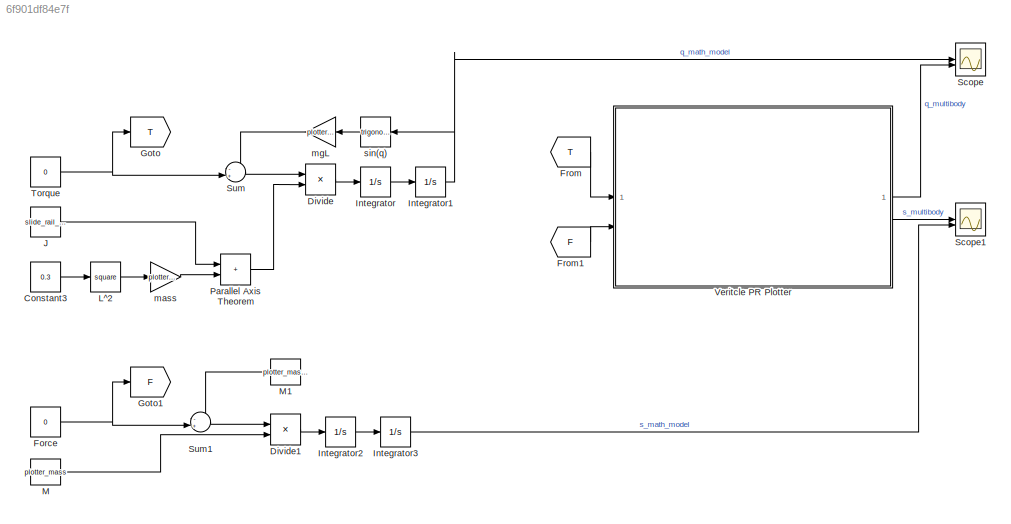
MODEL slx_6f901df84e7f
KIND model
CONFIG AbsTol = auto
CONFIG EnableMultiTasking = off
CONFIG FixedStep = 0.001
CONFIG MaxStep = auto
CONFIG MinStep = auto
CONFIG RelTol = 1e-3
CONFIG SampleTimeConstraint = Unconstrained
CONFIG SolverName = FixedStepAuto
CONFIG StartTime = 0.0
CONFIG StopTime = 10
BLOCK [Constant] Constant3
  Value = 0.3
BLOCK [Product] Divide
  Inputs = */
BLOCK [Product] Divide1
  Inputs = */
BLOCK [Constant] Force
  Value = 0
BLOCK [From] From
  GotoTag = T
BLOCK [From] From1
  GotoTag = F
BLOCK [Goto] Goto
  GotoTag = T
BLOCK [Goto] Goto1
  GotoTag = F
BLOCK [Integrator] Integrator
BLOCK [Integrator] Integrator1
BLOCK [Integrator] Integrator2
BLOCK [Integrator] Integrator3
  LowerSaturationLimit = 0
  UpperSaturationLimit = 0.3
BLOCK [Constant] J
  Value = slide_rail_Izz+cover_flage_Izz+plotter_Izz
BLOCK [Math] L^2
  Operator = square
BLOCK [Constant] M
  Value = plotter_mass
BLOCK [Constant] M1
  NameLocation = top
  Value = plotter_mass*g
BLOCK [Sum] Parallel Axis Theorem
  IconShape = rectangular
BLOCK [Scope] Scope
  Floating = off
  NumInputPorts = 2
  ScopeSpecificationString = Simulink.scopes.TimeScopeBlockCfg('CurrentConfiguration', extmgr.ConfigurationSet(extmgr.Configuration('Core','General UI',true),extmgr.Configuration('Core','Source UI',true),extmgr.Configuration('Sources','WiredSimulink',true),extmgr.Configuration('Visuals','Time Domain',true,'SerializedDisplays',{struct('MinYLimReal','-1.00000','MaxYLimReal','1.00000','YLabelReal','','MinYLimMag','0.00000','MaxY...<+1540ch>
BLOCK [Scope] Scope1
  Floating = off
  NumInputPorts = 2
  ScopeSpecificationString = Simulink.scopes.TimeScopeBlockCfg('CurrentConfiguration', extmgr.ConfigurationSet(extmgr.Configuration('Core','General UI',true),extmgr.Configuration('Core','Source UI',true),extmgr.Configuration('Sources','WiredSimulink',true,'DataLoggingVariableName','ScopeData1'),extmgr.Configuration('Visuals','Time Domain',true,'SerializedDisplays',{struct('MinYLimReal','-0.0625','MaxYLimReal','0.5625','YLabel...<+1546ch>
BLOCK [Sum] Sum
  Inputs = -+|
BLOCK [Sum] Sum1
  Inputs = -+|
BLOCK [Constant] Torque
  Value = 0
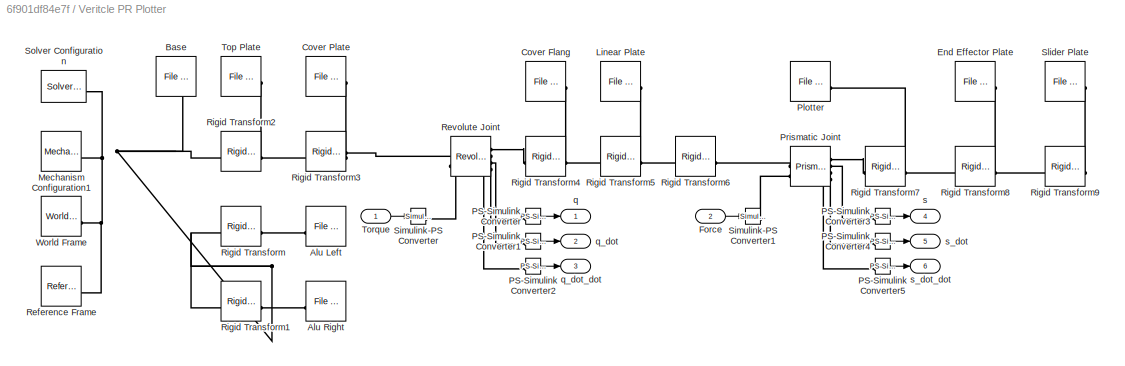
BLOCK [SubSystem] Veritcle PR Plotter
BLOCK [Reference] Veritcle PR Plotter/Alu Left  REF=sm_lib/Body Elements/File Solid
  NameLocation = top
  SourceBlock = sm_lib/Body Elements/File Solid
  SourceType = File Solid
BLOCK [Reference] Veritcle PR Plotter/Alu Right  REF=sm_lib/Body Elements/File Solid
  NameLocation = top
  SourceBlock = sm_lib/Body Elements/File Solid
  SourceType = File Solid
BLOCK [Reference] Veritcle PR Plotter/Base  REF=sm_lib/Body Elements/File Solid
  NameLocation = left
  SourceBlock = sm_lib/Body Elements/File Solid
  SourceType = File Solid
BLOCK [Reference] Veritcle PR Plotter/Cover Flang  REF=sm_lib/Body Elements/File Solid
  SourceBlock = sm_lib/Body Elements/File Solid
  SourceType = File Solid
BLOCK [Reference] Veritcle PR Plotter/Cover Plate  REF=sm_lib/Body Elements/File Solid
  SourceBlock = sm_lib/Body Elements/File Solid
  SourceType = File Solid
BLOCK [Reference] Veritcle PR Plotter/End Effector Plate  REF=sm_lib/Body Elements/File Solid
  SourceBlock = sm_lib/Body Elements/File Solid
  SourceType = File Solid
BLOCK [Inport] Veritcle PR Plotter/Force
  Port = 2
BLOCK [Reference] Veritcle PR Plotter/Linear Plate  REF=sm_lib/Body Elements/File Solid
  SourceBlock = sm_lib/Body Elements/File Solid
  SourceType = File Solid
BLOCK [Reference] Veritcle PR Plotter/Mechanism Configuration1  REF=sm_lib/Utilities/Mechanism
Configuration
  SourceBlock = sm_lib/Utilities/Mechanism\nConfiguration
  SourceType = Mechanism\nConfiguration
BLOCK [Reference] Veritcle PR Plotter/PS-Simulink Converter  REF=nesl_utility/PS-Simulink
Converter
  SourceBlock = nesl_utility/PS-Simulink\nConverter
  SourceType = PS-Simulink\nConverter
BLOCK [Reference] Veritcle PR Plotter/PS-Simulink Converter1  REF=nesl_utility/PS-Simulink
Converter
  SourceBlock = nesl_utility/PS-Simulink\nConverter
  SourceType = PS-Simulink\nConverter
BLOCK [Reference] Veritcle PR Plotter/PS-Simulink Converter2  REF=nesl_utility/PS-Simulink
Converter
  SourceBlock = nesl_utility/PS-Simulink\nConverter
  SourceType = PS-Simulink\nConverter
BLOCK [Reference] Veritcle PR Plotter/PS-Simulink Converter3  REF=nesl_utility/PS-Simulink
Converter
  SourceBlock = nesl_utility/PS-Simulink\nConverter
  SourceType = PS-Simulink\nConverter
BLOCK [Reference] Veritcle PR Plotter/PS-Simulink Converter4  REF=nesl_utility/PS-Simulink
Converter
  SourceBlock = nesl_utility/PS-Simulink\nConverter
  SourceType = PS-Simulink\nConverter
BLOCK [Reference] Veritcle PR Plotter/PS-Simulink Converter5  REF=nesl_utility/PS-Simulink
Converter
  SourceBlock = nesl_utility/PS-Simulink\nConverter
  SourceType = PS-Simulink\nConverter
BLOCK [Reference] Veritcle PR Plotter/Plotter  REF=sm_lib/Body Elements/File Solid
  SourceBlock = sm_lib/Body Elements/File Solid
  SourceType = File Solid
BLOCK [Reference] Veritcle PR Plotter/Prismatic Joint  REF=sm_lib/Joints/Prismatic
Joint
  SourceBlock = sm_lib/Joints/Prismatic\nJoint
  SourceType = Prismatic\nJoint
BLOCK [Reference] Veritcle PR Plotter/Reference Frame  REF=sm_lib/Frames and
Transforms/Reference
Frame
  SourceBlock = sm_lib/Frames and\nTransforms/Reference\nFrame
  SourceType = Reference\nFrame
BLOCK [Reference] Veritcle PR Plotter/Revolute Joint  REF=sm_lib/Joints/Revolute Joint
  SourceBlock = sm_lib/Joints/Revolute Joint
  SourceType = Revolute Joint
BLOCK [Reference] Veritcle PR Plotter/Rigid Transform  REF=sm_lib/Frames and
Transforms/Rigid
Transform
  SourceBlock = sm_lib/Frames and\nTransforms/Rigid\nTransform
  SourceType = Rigid\nTransform
BLOCK [Reference] Veritcle PR Plotter/Rigid Transform1  REF=sm_lib/Frames and
Transforms/Rigid
Transform
  SourceBlock = sm_lib/Frames and\nTransforms/Rigid\nTransform
  SourceType = Rigid\nTransform
BLOCK [Reference] Veritcle PR Plotter/Rigid Transform2  REF=sm_lib/Frames and
Transforms/Rigid
Transform
  SourceBlock = sm_lib/Frames and\nTransforms/Rigid\nTransform
  SourceType = Rigid\nTransform
BLOCK [Reference] Veritcle PR Plotter/Rigid Transform3  REF=sm_lib/Frames and
Transforms/Rigid
Transform
  SourceBlock = sm_lib/Frames and\nTransforms/Rigid\nTransform
  SourceType = Rigid\nTransform
BLOCK [Reference] Veritcle PR Plotter/Rigid Transform4  REF=sm_lib/Frames and
Transforms/Rigid
Transform
  SourceBlock = sm_lib/Frames and\nTransforms/Rigid\nTransform
  SourceType = Rigid\nTransform
BLOCK [Reference] Veritcle PR Plotter/Rigid Transform5  REF=sm_lib/Frames and
Transforms/Rigid
Transform
  SourceBlock = sm_lib/Frames and\nTransforms/Rigid\nTransform
  SourceType = Rigid\nTransform
BLOCK [Reference] Veritcle PR Plotter/Rigid Transform6  REF=sm_lib/Frames and
Transforms/Rigid
Transform
  SourceBlock = sm_lib/Frames and\nTransforms/Rigid\nTransform
  SourceType = Rigid\nTransform
BLOCK [Reference] Veritcle PR Plotter/Rigid Transform7  REF=sm_lib/Frames and
Transforms/Rigid
Transform
  SourceBlock = sm_lib/Frames and\nTransforms/Rigid\nTransform
  SourceType = Rigid\nTransform
BLOCK [Reference] Veritcle PR Plotter/Rigid Transform8  REF=sm_lib/Frames and
Transforms/Rigid
Transform
  SourceBlock = sm_lib/Frames and\nTransforms/Rigid\nTransform
  SourceType = Rigid\nTransform
BLOCK [Reference] Veritcle PR Plotter/Rigid Transform9  REF=sm_lib/Frames and
Transforms/Rigid
Transform
  SourceBlock = sm_lib/Frames and\nTransforms/Rigid\nTransform
  SourceType = Rigid\nTransform
BLOCK [Reference] Veritcle PR Plotter/Simulink-PS Converter  REF=nesl_utility/Simulink-PS
Converter
  SourceBlock = nesl_utility/Simulink-PS\nConverter
  SourceType = Simulink-PS\nConverter
BLOCK [Reference] Veritcle PR Plotter/Simulink-PS Converter1  REF=nesl_utility/Simulink-PS
Converter
  SourceBlock = nesl_utility/Simulink-PS\nConverter
  SourceType = Simulink-PS\nConverter
BLOCK [Reference] Veritcle PR Plotter/Slider Plate  REF=sm_lib/Body Elements/File Solid
  SourceBlock = sm_lib/Body Elements/File Solid
  SourceType = File Solid
BLOCK [Reference] Veritcle PR Plotter/Solver Configuration  REF=nesl_utility/Solver
Configuration
  SourceBlock = nesl_utility/Solver\nConfiguration
  SourceType = Solver\nConfiguration
BLOCK [Reference] Veritcle PR Plotter/Top Plate  REF=sm_lib/Body Elements/File Solid
  SourceBlock = sm_lib/Body Elements/File Solid
  SourceType = File Solid
BLOCK [Inport] Veritcle PR Plotter/Torque
BLOCK [Reference] Veritcle PR Plotter/World Frame  REF=sm_lib/Frames and
Transforms/World Frame
  SourceBlock = sm_lib/Frames and\nTransforms/World Frame
  SourceType = World Frame
BLOCK [Outport] Veritcle PR Plotter/q
  NameLocation = right
BLOCK [Outport] Veritcle PR Plotter/q_dot
  NameLocation = right
  Port = 2
BLOCK [Outport] Veritcle PR Plotter/q_dot_dot
  NameLocation = right
  Port = 3
BLOCK [Outport] Veritcle PR Plotter/s
  NameLocation = right
  Port = 4
BLOCK [Outport] Veritcle PR Plotter/s_dot
  NameLocation = right
  Port = 5
BLOCK [Outport] Veritcle PR Plotter/s_dot_dot
  NameLocation = right
  Port = 6
BLOCK [Gain] mass
  Gain = plotter_mass
BLOCK [Gain] mgL
  Gain = plotter_mass*g*0.3
  NameLocation = top
BLOCK [Trigonometry] sin(q)
  NameLocation = top
LINE Constant3:1 -> L^2:1
LINE Divide1:1 -> Integrator2:1
LINE Divide:1 -> Integrator:1
NET Force:1 -> Goto1:1, Sum1:2
LINE From1:1 -> Veritcle PR Plotter:2
LINE From:1 -> Veritcle PR Plotter:1
NET Integrator1:1 -> Scope:1, sin(q):1
LINE Integrator2:1 -> Integrator3:1
LINE Integrator3:1 -> Scope1:2
LINE Integrator:1 -> Integrator1:1
LINE J:1 -> Parallel Axis Theorem:1
LINE L^2:1 -> mass:1
LINE M1:1 -> Sum1:1
LINE M:1 -> Divide1:2
LINE Parallel Axis Theorem:1 -> Divide:2
LINE Sum1:1 -> Divide1:1
LINE Sum:1 -> Divide:1
NET Torque:1 -> Goto:1, Sum:2
LINE Veritcle PR Plotter/Force:1 -> Veritcle PR Plotter/Simulink-PS Converter1:1
LINE Veritcle PR Plotter/PS-Simulink Converter1:1 -> Veritcle PR Plotter/q_dot:1
LINE Veritcle PR Plotter/PS-Simulink Converter2:1 -> Veritcle PR Plotter/q_dot_dot:1
LINE Veritcle PR Plotter/PS-Simulink Converter3:1 -> Veritcle PR Plotter/s:1
LINE Veritcle PR Plotter/PS-Simulink Converter4:1 -> Veritcle PR Plotter/s_dot:1
LINE Veritcle PR Plotter/PS-Simulink Converter5:1 -> Veritcle PR Plotter/s_dot_dot:1
LINE Veritcle PR Plotter/PS-Simulink Converter:1 -> Veritcle PR Plotter/q:1
LINE Veritcle PR Plotter/Torque:1 -> Veritcle PR Plotter/Simulink-PS Converter:1
LINE Veritcle PR Plotter:1 -> Scope:2
LINE Veritcle PR Plotter:4 -> Scope1:1
LINE mass:1 -> Parallel Axis Theorem:2
LINE mgL:1 -> Sum:1
LINE sin(q):1 -> mgL:1
PLINE Veritcle PR Plotter/Alu Left:RConn1 -- Veritcle PR Plotter/Rigid Transform:RConn1
PLINE Veritcle PR Plotter/Alu Right:RConn1 -- Veritcle PR Plotter/Rigid Transform1:RConn1
PNET net1: Veritcle PR Plotter/Base:RConn1 -- Veritcle PR Plotter/Mechanism Configuration1:RConn1 -- Veritcle PR Plotter/Reference Frame:RConn1 -- Veritcle PR Plotter/Rigid Transform1:LConn1 -- Veritcle PR Plotter/Rigid Transform2:LConn1 -- Veritcle PR Plotter/Rigid Transform:LConn1 -- Veritcle PR Plotter/Solver Configuration:RConn1 -- Veritcle PR Plotter/World Frame:RConn1
PNET net2: Veritcle PR Plotter/Cover Flang:RConn1 -- Veritcle PR Plotter/Rigid Transform4:RConn1 -- Veritcle PR Plotter/Rigid Transform5:LConn1
PNET net3: Veritcle PR Plotter/Cover Plate:RConn1 -- Veritcle PR Plotter/Revolute Joint:LConn1 -- Veritcle PR Plotter/Rigid Transform3:RConn1
PNET net4: Veritcle PR Plotter/End Effector Plate:RConn1 -- Veritcle PR Plotter/Rigid Transform8:RConn1 -- Veritcle PR Plotter/Rigid Transform9:LConn1
PNET net5: Veritcle PR Plotter/Linear Plate:RConn1 -- Veritcle PR Plotter/Rigid Transform5:RConn1 -- Veritcle PR Plotter/Rigid Transform6:LConn1
PLINE Veritcle PR Plotter/PS-Simulink Converter1:LConn1 -- Veritcle PR Plotter/Revolute Joint:RConn3
PLINE Veritcle PR Plotter/PS-Simulink Converter2:LConn1 -- Veritcle PR Plotter/Revolute Joint:RConn4
PLINE Veritcle PR Plotter/PS-Simulink Converter3:LConn1 -- Veritcle PR Plotter/Prismatic Joint:RConn2
PLINE Veritcle PR Plotter/PS-Simulink Converter4:LConn1 -- Veritcle PR Plotter/Prismatic Joint:RConn3
PLINE Veritcle PR Plotter/PS-Simulink Converter5:LConn1 -- Veritcle PR Plotter/Prismatic Joint:RConn4
PLINE Veritcle PR Plotter/PS-Simulink Converter:LConn1 -- Veritcle PR Plotter/Revolute Joint:RConn2
PNET net6: Veritcle PR Plotter/Plotter:RConn1 -- Veritcle PR Plotter/Rigid Transform7:RConn1 -- Veritcle PR Plotter/Rigid Transform8:LConn1
PLINE Veritcle PR Plotter/Prismatic Joint:LConn1 -- Veritcle PR Plotter/Rigid Transform6:RConn1
PLINE Veritcle PR Plotter/Prismatic Joint:LConn2 -- Veritcle PR Plotter/Simulink-PS Converter1:RConn1
PLINE Veritcle PR Plotter/Prismatic Joint:RConn1 -- Veritcle PR Plotter/Rigid Transform7:LConn1
PLINE Veritcle PR Plotter/Revolute Joint:LConn2 -- Veritcle PR Plotter/Simulink-PS Converter:RConn1
PLINE Veritcle PR Plotter/Revolute Joint:RConn1 -- Veritcle PR Plotter/Rigid Transform4:LConn1
PNET net7: Veritcle PR Plotter/Rigid Transform2:RConn1 -- Veritcle PR Plotter/Rigid Transform3:LConn1 -- Veritcle PR Plotter/Top Plate:RConn1
PLINE Veritcle PR Plotter/Rigid Transform9:RConn1 -- Veritcle PR Plotter/Slider Plate:RConn1
note: NET lines group one-source signal fan-out (src -> all destinations, sorted); 1:1 wires keep LINE; PNET lines group multi-terminal physical nets as a canonical sorted terminal list (undirected conserving connections); 2-terminal nets keep the pairwise PLINE form
